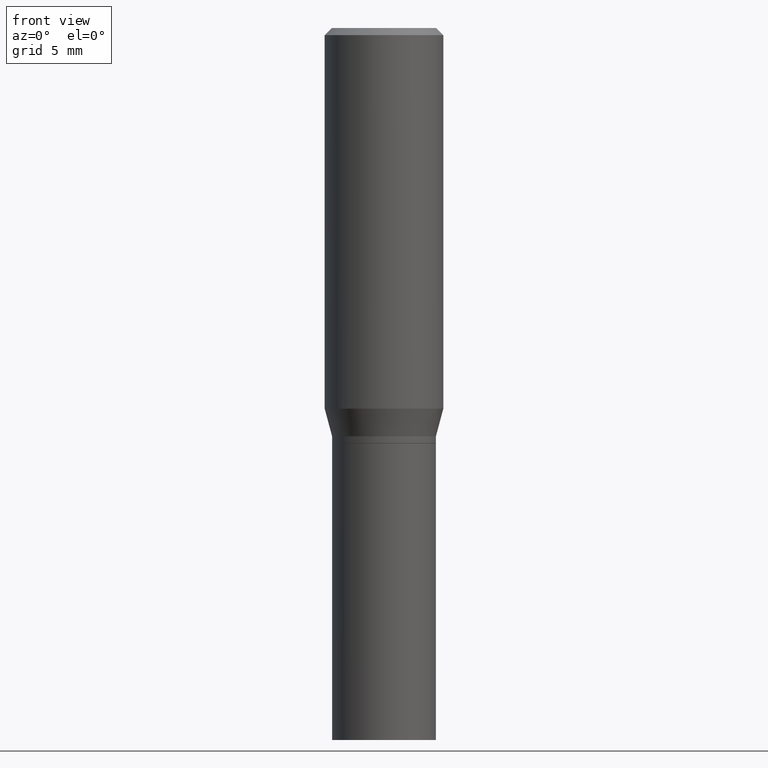
[diagram: clean part render]
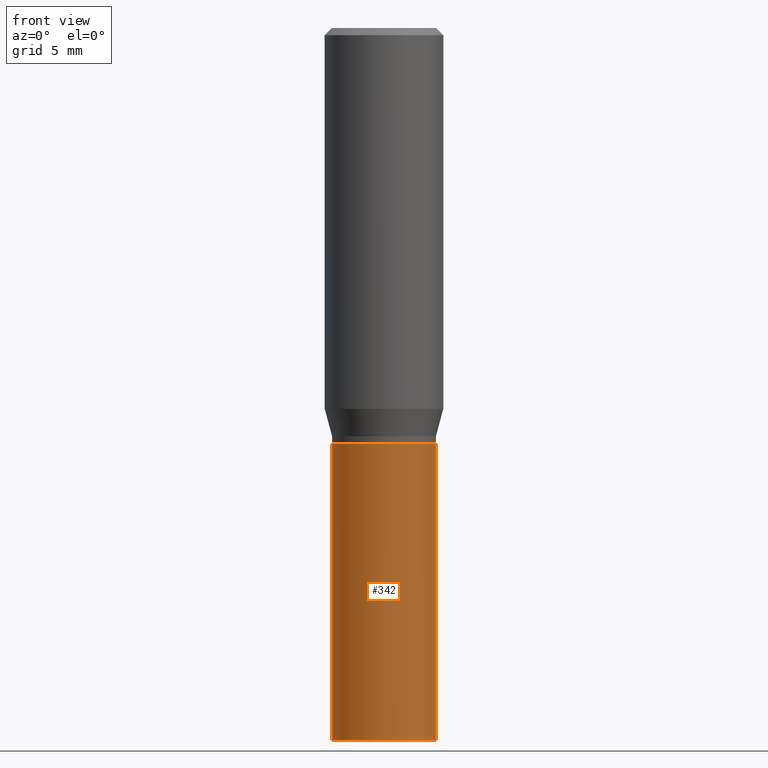
[diagram: same view with one face highlighted and labeled with its STEP entity id]
A machine part, front view. The second image highlights one B-rep face of the part: STEP entity #342.
In plain terms, the highlighted cylindrical surface (partial cylindrical patch) has radius 2.7788 mm, axis along (-0, 0, 1).
Its self-contained STEP definition (entity closure, byte-faithful):
#7 = DIRECTION ( 'NONE',  ( 1.000000000000000000, -6.982962677686269866E-15, 0.000000000000000000 ) ) ;
#12 = CYLINDRICAL_SURFACE ( 'NONE', #163, 0.1093999999999999972 ) ;
#13 = ORIENTED_EDGE ( 'NONE', *, *, #288, .F. ) ;
#23 = LINE ( 'NONE', #135, #461 ) ;
#34 = CARTESIAN_POINT ( 'NONE',  ( -0.1093999999999999972, -3.368800336954685870E-15, -1.500000000000000222 ) ) ;
#43 = VERTEX_POINT ( 'NONE', #347 ) ;
#69 = ORIENTED_EDGE ( 'NONE', *, *, #414, .T. ) ;
#88 = DIRECTION ( 'NONE',  ( -2.445468806185136597E-29, 3.491481338843145583E-15, 1.000000000000000000 ) ) ;
#106 = EDGE_CURVE ( 'NONE', #43, #226, #384, .T. ) ;
#107 = CARTESIAN_POINT ( 'NONE',  ( -0.1093999999999999972, -3.368800336954685870E-15, -0.8750000000000001110 ) ) ;
#111 = EDGE_CURVE ( 'NONE', #186, #142, #23, .T. ) ;
#131 = AXIS2_PLACEMENT_3D ( 'NONE', #178, #327, #7 ) ;
#135 = CARTESIAN_POINT ( 'NONE',  ( -0.1093999999999999972, 7.773337529215495838E-16, -5.381314988738867416E-30 ) ) ;
#142 = VERTEX_POINT ( 'NONE', #107 ) ;
#144 = CIRCLE ( 'NONE', #131, 0.1093999999999999972 ) ;
#152 = CARTESIAN_POINT ( 'NONE',  ( 0.000000000000000000, 0.000000000000000000, 0.000000000000000000 ) ) ;
#157 = CIRCLE ( 'NONE', #183, 0.1093999999999999972 ) ;
#159 = ORIENTED_EDGE ( 'NONE', *, *, #106, .T. ) ;
#163 = AXIS2_PLACEMENT_3D ( 'NONE', #152, #88, #452 ) ;
#165 = CARTESIAN_POINT ( 'NONE',  ( 0.1093999999999999972, -7.639361169388775718E-16, 5.334537392720753909E-30 ) ) ;
#176 = CARTESIAN_POINT ( 'NONE',  ( 0.1093999999999999972, -3.818982288426630302E-15, -0.8750000000000001110 ) ) ;
#178 = CARTESIAN_POINT ( 'NONE',  ( 3.668203209277704895E-29, -5.237222008264718177E-15, -1.500000000000000222 ) ) ;
#181 = EDGE_LOOP ( 'NONE', ( #446, #69, #159, #13 ) ) ;
#183 = AXIS2_PLACEMENT_3D ( 'NONE', #434, #247, #355 ) ;
#186 = VERTEX_POINT ( 'NONE', #34 ) ;
#225 = FACE_OUTER_BOUND ( 'NONE', #181, .T. ) ;
#226 = VERTEX_POINT ( 'NONE', #176 ) ;
#242 = DIRECTION ( 'NONE',  ( -2.445468806185136877E-29, 3.491481338843145188E-15, 1.000000000000000000 ) ) ;
#247 = DIRECTION ( 'NONE',  ( -2.445468806185136597E-29, 3.491481338843145583E-15, 1.000000000000000000 ) ) ;
#288 = EDGE_CURVE ( 'NONE', #142, #226, #157, .T. ) ;
#327 = DIRECTION ( 'NONE',  ( -2.445468806185136597E-29, 3.491481338843145583E-15, 1.000000000000000000 ) ) ;
#342 = ADVANCED_FACE ( 'NONE', ( #225 ), #12, .T. ) ;
#343 = DIRECTION ( 'NONE',  ( -2.445468806185136877E-29, 3.491481338843145188E-15, 1.000000000000000000 ) ) ;
#345 = VECTOR ( 'NONE', #343, 39.37007874015748143 ) ;
#347 = CARTESIAN_POINT ( 'NONE',  ( 0.1093999999999999972, -6.001158125203596537E-15, -1.500000000000000222 ) ) ;
#355 = DIRECTION ( 'NONE',  ( 1.000000000000000000, -6.982962677686269866E-15, 0.000000000000000000 ) ) ;
#384 = LINE ( 'NONE', #165, #345 ) ;
#414 = EDGE_CURVE ( 'NONE', #186, #43, #144, .T. ) ;
#434 = CARTESIAN_POINT ( 'NONE',  ( 2.139785205411994522E-29, -3.055046171487752730E-15, -0.8750000000000001110 ) ) ;
#446 = ORIENTED_EDGE ( 'NONE', *, *, #111, .F. ) ;
#452 = DIRECTION ( 'NONE',  ( 1.000000000000000000, -6.982962677686266711E-15, 4.876176775795935793E-29 ) ) ;
#461 = VECTOR ( 'NONE', #242, 39.37007874015748143 ) ;